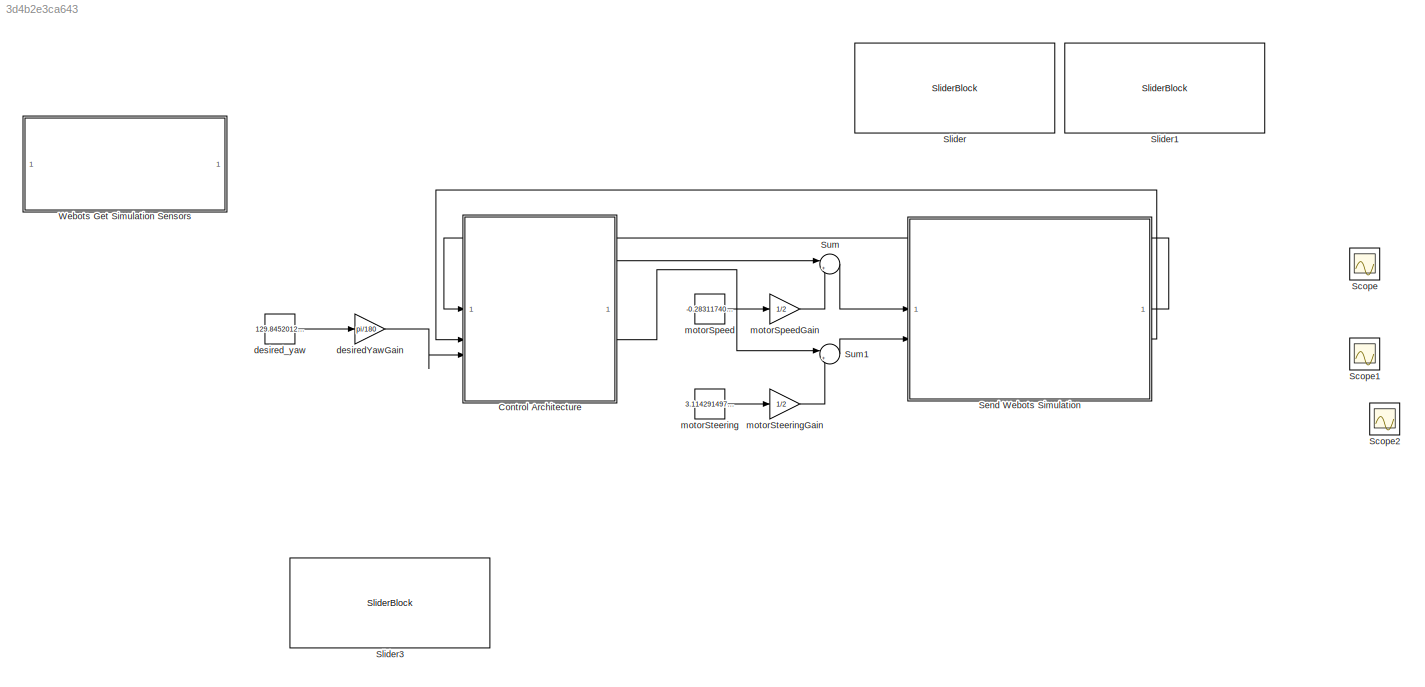
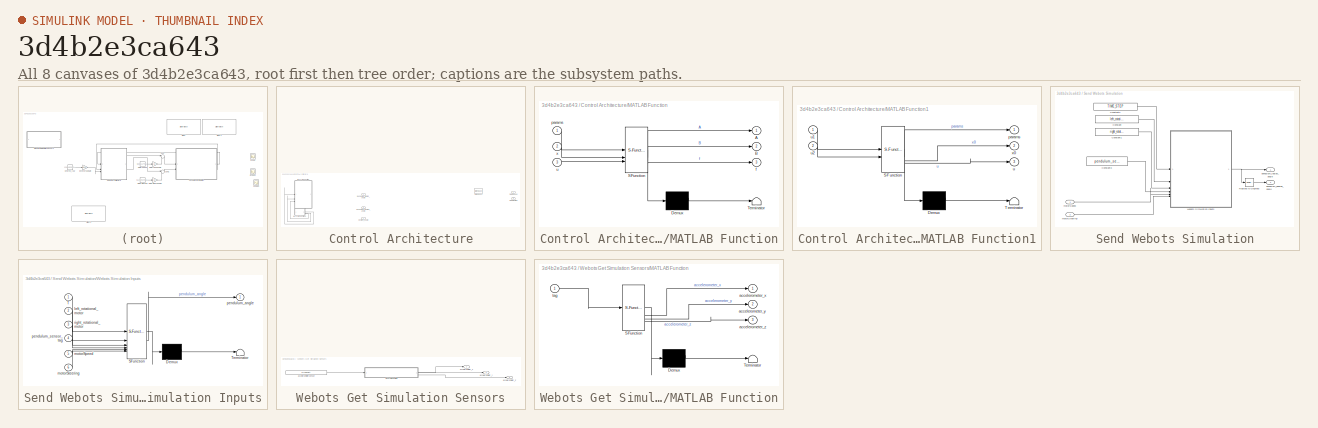
[diagram: thumbnail index - all 8 canvases of the model, root first then tree order]
MODEL slx_3d4b2e3ca643
KIND model
CONFIG AbsTol = auto
CONFIG EnableMultiTasking = off
CONFIG FixedStep = auto
CONFIG MaxStep = auto
CONFIG MinStep = auto
CONFIG RelTol = 1e-3
CONFIG SampleTimeConstraint = Unconstrained
CONFIG SolverName = ode5
CONFIG StartTime = 0.0
CONFIG StopTime = inf
BLOCK [SubSystem] Control Architecture
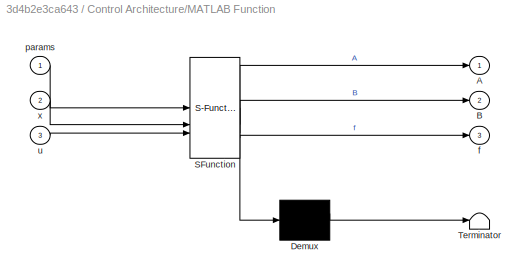
BLOCK [SubSystem] Control Architecture/MATLAB Function
  Commented = on
  ErrorFcn = Stateflow.Translate.translate
  PermitHierarchicalResolution = ExplicitOnly
  SFBlockType = MATLAB Function
  TreatAsAtomicUnit = on
BLOCK [Demux] Control Architecture/MATLAB Function/ Demux 
  Outputs = 1
BLOCK [S-Function] Control Architecture/MATLAB Function/ SFunction 
  EnableBusSupport = on
  FunctionName = sf_sfun
  PortCounts = [3 4]
  SFcnIsStateOwnerBlock = off
  SFunctionDeploymentMode = off
  Tag = Stateflow S-Function 3
BLOCK [Terminator] Control Architecture/MATLAB Function/ Terminator 
BLOCK [Outport] Control Architecture/MATLAB Function/A
BLOCK [Outport] Control Architecture/MATLAB Function/B
  Port = 2
BLOCK [Outport] Control Architecture/MATLAB Function/f
  Port = 3
BLOCK [Inport] Control Architecture/MATLAB Function/params
BLOCK [Inport] Control Architecture/MATLAB Function/u
  Port = 3
BLOCK [Inport] Control Architecture/MATLAB Function/x
  Port = 2
BLOCK [SubSystem] Control Architecture/MATLAB Function1
  Commented = on
  ErrorFcn = Stateflow.Translate.translate
  PermitHierarchicalResolution = ExplicitOnly
  SFBlockType = MATLAB Function
  TreatAsAtomicUnit = on
BLOCK [Demux] Control Architecture/MATLAB Function1/ Demux 
  Outputs = 1
BLOCK [S-Function] Control Architecture/MATLAB Function1/ SFunction 
  EnableBusSupport = on
  FunctionName = sf_sfun
  PortCounts = [2 4]
  SFcnIsStateOwnerBlock = off
  SFunctionDeploymentMode = off
  Tag = Stateflow S-Function 4
BLOCK [Terminator] Control Architecture/MATLAB Function1/ Terminator 
BLOCK [Outport] Control Architecture/MATLAB Function1/params
BLOCK [Outport] Control Architecture/MATLAB Function1/u
  Port = 3
BLOCK [Inport] Control Architecture/MATLAB Function1/u1
BLOCK [Inport] Control Architecture/MATLAB Function1/u2
  Port = 2
BLOCK [Outport] Control Architecture/MATLAB Function1/x0
  Port = 2
BLOCK [StateSpace] Control Architecture/State-Space
  InitialCondition = 0
BLOCK [Inport] Control Architecture/desired_angle
  Port = 3
BLOCK [Outport] Control Architecture/motorSpeed
BLOCK [Outport] Control Architecture/motorSteering
  Port = 2
BLOCK [Inport] Control Architecture/pendulum_degree_angle
  Port = 2
BLOCK [Inport] Control Architecture/pendulum_radian_angle
BLOCK [Scope] Scope
  Floating = off
  NumInputPorts = 1
  ScopeSpecificationString = Simulink.scopes.TimeScopeBlockCfg('CurrentConfiguration', extmgr.ConfigurationSet(extmgr.Configuration('Core','General UI',true),extmgr.Configuration('Core','Source UI',true),extmgr.Configuration('Sources','WiredSimulink',true),extmgr.Configuration('Visuals','Time Domain',true,'SerializedDisplays',{struct('MinYLimReal','-10.83442','MaxYLimReal','1.20785','YLabelReal','','MinYLimMag','0.00000','Max...<+1517ch>
BLOCK [Scope] Scope1
  Floating = off
  NumInputPorts = 1
  ScopeSpecificationString = Simulink.scopes.TimeScopeBlockCfg('CurrentConfiguration', extmgr.ConfigurationSet(extmgr.Configuration('Core','General UI',true),extmgr.Configuration('Core','Source UI',true),extmgr.Configuration('Sources','WiredSimulink',true,'DataLoggingVariableName','ScopeData1'),extmgr.Configuration('Visuals','Time Domain',true,'SerializedDisplays',{struct('MinYLimReal','-0.09822','MaxYLimReal','0.01091','YLab...<+1526ch>
BLOCK [Scope] Scope2
  Floating = off
  NumInputPorts = 1
  ScopeSpecificationString = Simulink.scopes.TimeScopeBlockCfg('CurrentConfiguration', extmgr.ConfigurationSet(extmgr.Configuration('Core','General UI',true),extmgr.Configuration('Core','Source UI',true),extmgr.Configuration('Sources','WiredSimulink',true,'DataLoggingVariableName','ScopeData1'),extmgr.Configuration('Visuals','Time Domain',true,'SerializedDisplays',{struct('MinYLimReal','-0.11221','MaxYLimReal','0.01247','YLab...<+1475ch>
BLOCK [SubSystem] Send Webots Simulation
BLOCK [Constant] Send Webots Simulation/Constant
  Value = left_rotational_motor
BLOCK [Constant] Send Webots Simulation/Constant1
  Value = right_rotational_motor
BLOCK [Constant] Send Webots Simulation/Constant2
  Value = TIME_STEP
BLOCK [Constant] Send Webots Simulation/Constant3
  Value = pendulum_sensor
BLOCK [Reference] Send Webots Simulation/Radians to Degrees  REF=simulink_extras/Transformations/Radians
to Degrees
  SourceBlock = simulink_extras/Transformations/Radians\nto Degrees
  SourceType = RadiansToDegrees
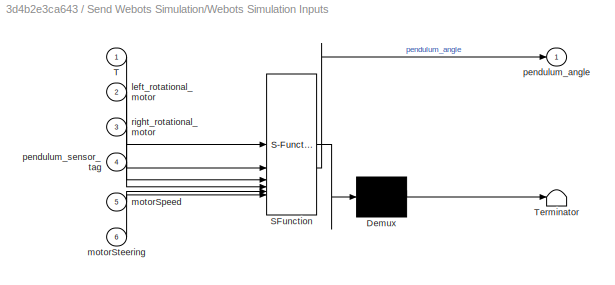
BLOCK [SubSystem] Send Webots Simulation/Webots Simulation Inputs
  ErrorFcn = Stateflow.Translate.translate
  PermitHierarchicalResolution = ExplicitOnly
  SFBlockType = MATLAB Function
  TreatAsAtomicUnit = on
BLOCK [Demux] Send Webots Simulation/Webots Simulation Inputs/ Demux 
  Outputs = 1
BLOCK [S-Function] Send Webots Simulation/Webots Simulation Inputs/ SFunction 
  EnableBusSupport = on
  FunctionName = sf_sfun
  PortCounts = [6 2]
  SFcnIsStateOwnerBlock = off
  SFunctionDeploymentMode = off
  Tag = Stateflow S-Function 2
BLOCK [Terminator] Send Webots Simulation/Webots Simulation Inputs/ Terminator 
BLOCK [Inport] Send Webots Simulation/Webots Simulation Inputs/T
BLOCK [Inport] Send Webots Simulation/Webots Simulation Inputs/left_rotational_motor
  Port = 2
BLOCK [Inport] Send Webots Simulation/Webots Simulation Inputs/motorSpeed
  Port = 5
BLOCK [Inport] Send Webots Simulation/Webots Simulation Inputs/motorSteering
  Port = 6
BLOCK [Outport] Send Webots Simulation/Webots Simulation Inputs/pendulum_angle
BLOCK [Inport] Send Webots Simulation/Webots Simulation Inputs/pendulum_sensor_tag
  Port = 4
BLOCK [Inport] Send Webots Simulation/Webots Simulation Inputs/right_rotational_motor
  Port = 3
BLOCK [Inport] Send Webots Simulation/motorSpeed
BLOCK [Inport] Send Webots Simulation/motorSteering
  Port = 2
BLOCK [Outport] Send Webots Simulation/pendulum_degree_angle
  Port = 2
BLOCK [Outport] Send Webots Simulation/pendulum_radian_angle
BLOCK [SliderBlock] Slider
  ScaleMax = 9.99
  ScaleMin = -9.99
BLOCK [SliderBlock] Slider1
  ScaleMax = 9.99
  ScaleMin = -9.99
BLOCK [SliderBlock] Slider3
  ScaleMax = 180
  ScaleMin = -180
BLOCK [Sum] Sum
  Inputs = |++
BLOCK [Sum] Sum1
  Inputs = |++
BLOCK [SubSystem] Webots Get Simulation Sensors
  Commented = on
BLOCK [SubSystem] Webots Get Simulation Sensors/MATLAB Function
  ErrorFcn = Stateflow.Translate.translate
  PermitHierarchicalResolution = ExplicitOnly
  SFBlockType = MATLAB Function
  TreatAsAtomicUnit = on
BLOCK [Demux] Webots Get Simulation Sensors/MATLAB Function/ Demux 
  Outputs = 1
BLOCK [S-Function] Webots Get Simulation Sensors/MATLAB Function/ SFunction 
  EnableBusSupport = on
  FunctionName = sf_sfun
  PortCounts = [1 4]
  SFcnIsStateOwnerBlock = off
  SFunctionDeploymentMode = off
  Tag = Stateflow S-Function 1
BLOCK [Terminator] Webots Get Simulation Sensors/MATLAB Function/ Terminator 
BLOCK [Outport] Webots Get Simulation Sensors/MATLAB Function/accelerometer_x
BLOCK [Outport] Webots Get Simulation Sensors/MATLAB Function/accelerometer_y
  Port = 2
BLOCK [Outport] Webots Get Simulation Sensors/MATLAB Function/accelerometer_z
  Port = 3
BLOCK [Inport] Webots Get Simulation Sensors/MATLAB Function/tag
BLOCK [Constant] Webots Get Simulation Sensors/accelerometer sensor
  Value = accelerometer_sensor
BLOCK [Outport] Webots Get Simulation Sensors/accelerometer_x
BLOCK [Outport] Webots Get Simulation Sensors/accelerometer_y
  Port = 2
BLOCK [Outport] Webots Get Simulation Sensors/accelerometer_z
  Port = 3
BLOCK [Gain] desiredYawGain
  Gain = pi/180
BLOCK [Constant] desired_yaw
  Value = 129.8452012383901
BLOCK [Constant] motorSpeed
  Value = -0.2831174089068824
BLOCK [Gain] motorSpeedGain
  Gain = 1/2
BLOCK [Constant] motorSteering
  Value = 3.114291497975708
BLOCK [Gain] motorSteeringGain
  Gain = 1/2
LINE Control Architecture/MATLAB Function1:1 -> Control Architecture/MATLAB Function:1
LINE Control Architecture/MATLAB Function1:2 -> Control Architecture/MATLAB Function:2
LINE Control Architecture/MATLAB Function1:3 -> Control Architecture/MATLAB Function:3
LINE Control Architecture:1 -> Sum:1
LINE Control Architecture:2 -> Sum1:1
LINE Send Webots Simulation/Constant1:1 -> Send Webots Simulation/Webots Simulation Inputs:3
LINE Send Webots Simulation/Constant2:1 -> Send Webots Simulation/Webots Simulation Inputs:1
LINE Send Webots Simulation/Constant3:1 -> Send Webots Simulation/Webots Simulation Inputs:4
LINE Send Webots Simulation/Constant:1 -> Send Webots Simulation/Webots Simulation Inputs:2
LINE Send Webots Simulation/Radians to Degrees:1 -> Send Webots Simulation/pendulum_degree_angle:1
NET Send Webots Simulation/Webots Simulation Inputs:1 -> Send Webots Simulation/Radians to Degrees:1, Send Webots Simulation/pendulum_radian_angle:1
LINE Send Webots Simulation/motorSpeed:1 -> Send Webots Simulation/Webots Simulation Inputs:5
LINE Send Webots Simulation/motorSteering:1 -> Send Webots Simulation/Webots Simulation Inputs:6
LINE Send Webots Simulation:1 -> Control Architecture:1
LINE Send Webots Simulation:2 -> Control Architecture:2
LINE Sum1:1 -> Send Webots Simulation:2
LINE Sum:1 -> Send Webots Simulation:1
LINE Webots Get Simulation Sensors/MATLAB Function:1 -> Webots Get Simulation Sensors/accelerometer_x:1
LINE Webots Get Simulation Sensors/MATLAB Function:2 -> Webots Get Simulation Sensors/accelerometer_y:1
LINE Webots Get Simulation Sensors/MATLAB Function:3 -> Webots Get Simulation Sensors/accelerometer_z:1
LINE Webots Get Simulation Sensors/accelerometer sensor:1 -> Webots Get Simulation Sensors/MATLAB Function:1
LINE desiredYawGain:1 -> Control Architecture:3
LINE desired_yaw:1 -> desiredYawGain:1
LINE motorSpeed:1 -> motorSpeedGain:1
LINE motorSpeedGain:1 -> Sum:2
LINE motorSteering:1 -> motorSteeringGain:1
LINE motorSteeringGain:1 -> Sum1:2
note: NET lines group one-source signal fan-out (src -> all destinations, sorted); 1:1 wires keep LINE
CHART Webots Get Simulation Sensors/MATLAB Function states=1 transitions=1
  STATE_LABEL 'eML_blk_kernel()'
  STATE_LABEL 'SCRIPT:\nfunction [accelerometer_x,accelerometer_y,accelerometer_z] = accelerometer_sensor_get(tag)\n\nperiod = wb_accelerometer_get_sampling_period(tag)\nvalues = wb_accelerometer_get_values(tag);\naccelerometer_x = values(1);\naccelerometer_y = values(2);\naccelerometer_z = values(3);\n'
CHART Send Webots Simulation/Webots Simulation Inputs states=1 transitions=1
  STATE_LABEL 'eML_blk_kernel()'
  STATE_LABEL 'SCRIPT:\nfunction pendulum_angle =   simulation(T,left_rotational_motor,right_rotational_motor,pendulum_sensor_tag,motorSpeed ...\n    ...\n    ,motorSteering)\n\npendulum_angle=0.0\nwb_robot_step(T)\nwb_motor_set_position(left_rotational_motor, Inf);\nwb_motor_set_velocity(left_rotational_motor, motorSpeed-motorSteering);\nwb_motor_set_position(right_rotational_motor, Inf);\nwb_motor_set_velocity(right_rot...<+232ch>'
CHART Control Architecture/MATLAB Function states=1 transitions=1
  STATE_LABEL 'eML_blk_kernel()'
  STATE_LABEL 'SCRIPT:\nfunction [A, B, f] = system_matrices(params, x, u)\n    % Parameters\n    k1 = params.k1;\n    k2 = params.k2;\n    m = params.m;\n    n = params.n;\n    \n    A22 = -2 * k2 * (params.Mp * params.R * params.L^2 + params.Mp * params.R^2 * params.L + params.JPt * params.R) / m;\n    A23 = -(params.Mp^2 * params.R^2 * params.L^2 * params.g) / m;\n    A42 = -2 * k2 / (params.JPt + params.Mp * params.L)...<+731ch>'
CHART Control Architecture/MATLAB Function1 states=1 transitions=1
  STATE_LABEL 'eML_blk_kernel()'
  STATE_LABEL 'SCRIPT:\nfunction [params,x0,u] = fcn(u1,u2)\nparams.N = 100;\nparams.kt = 0.5;\nparams.ke = 0.3;\nparams.Ra = 2.0;\nparams.Mp = 0.5;\nparams.g = 9.81;\nparams.f2 = 0;\nparams.f4 = 0;\nparams.f6 = 0;\n\nx0 = [0; 0; 0; 0; 0; 0]; \n\nu = [0.2; -0.1]; \n\n'
CHART  states=0 transitions=0
CHART  states=0 transitions=0
CHART  states=0 transitions=0
CHART  states=0 transitions=0
